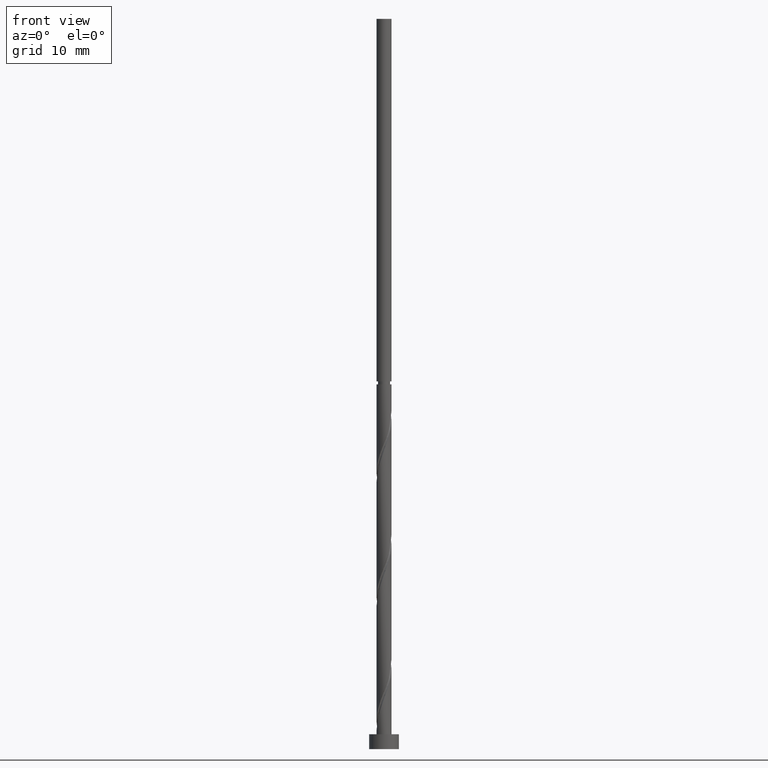
[diagram: clean part render]
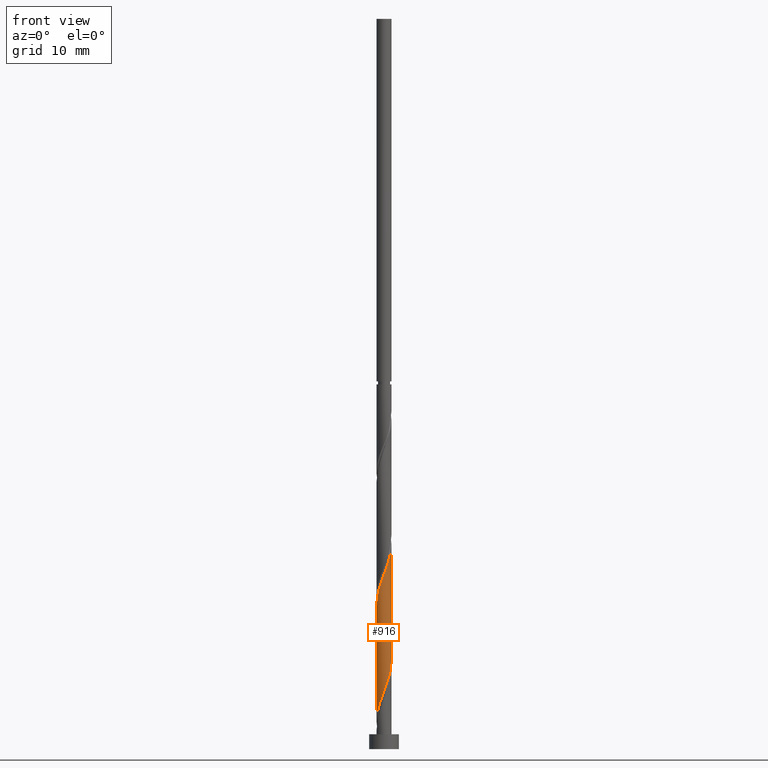
[diagram: same view with one face highlighted and labeled with its STEP entity id]
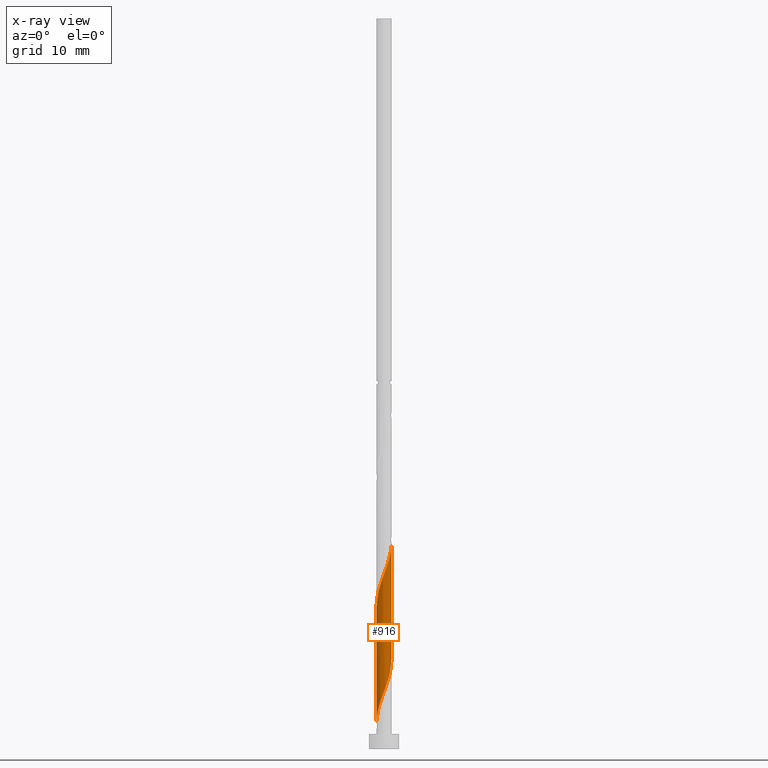
[diagram: x-ray of the same camera — body ghosted, the highlighted face saturated]
A machine part, front view. The second image highlights one B-rep face of the part: STEP entity #916.
The next image is the same camera in x-ray: the body ghosted, the highlighted face saturated — about 0% of this face is hidden behind the body in this view.
In plain terms, the highlighted cylindrical surface (edge-blend (fillet) strip) has radius 1 mm, axis along (-0, -0, -1).
Its self-contained STEP definition (entity closure, byte-faithful):
#8 = CARTESIAN_POINT ( 'NONE',  ( 1.000000000000001554, 8.963379928136170054E-17, 11.97549921100827142 ) ) ;
#84 = CARTESIAN_POINT ( 'NONE',  ( -0.9305560469009572788, -0.3661494825560536737, 20.24094061898249564 ) ) ;
#130 = CARTESIAN_POINT ( 'NONE',  ( -0.1989974874213162048, -0.9800000000000025357, 7.277977656019528396 ) ) ;
#219 = CARTESIAN_POINT ( 'NONE',  ( -1.000000000000001554, 5.639459871452275137E-16, 19.24712276769746211 ) ) ;
#231 =( BOUNDED_CURVE ( )  B_SPLINE_CURVE ( 2, ( #520, #393, #384, #952, #84, #1809, #403, #655, #1626, #363, #1375, #645, #1071, #1244, #1504, #676, #1637, #961, #1062, #1083, #1800 ),
 .UNSPECIFIED., .F., .T. ) 
 B_SPLINE_CURVE_WITH_KNOTS ( ( 3, 2, 2, 2, 2, 2, 2, 2, 2, 2, 3 ),
 ( 0.3045248053855295622, 0.3055555555555555802, 0.3194444444444444198, 0.3333333333333333703, 0.3472222222222222099, 0.3611111111111111605, 0.3750000000000000000, 0.3888888888888888395, 0.4027777777777777901, 0.4166666666666666297, 0.4295248053855293402 ),
 .UNSPECIFIED. ) 
 CURVE ( )  GEOMETRIC_REPRESENTATION_ITEM ( )  RATIONAL_B_SPLINE_CURVE ( ( 0.9071930855141420169, 0.9080659294509892954, 0.9090909090909289336, 0.8952797754656631746, 0.9090909090909289336, 0.8952797754656631746, 0.9090909090909289336, 0.8952797754656631746, 0.9090909090909289336, 0.8952797754656631746, 0.9090909090909289336, 0.8952797754656631746, 0.9090909090909289336, 0.8952797754656631746, 0.9090909090909289336, 0.8952797754656631746, 0.9090909090909289336, 0.8952797754656631746, 0.9090909090909289336, 0.8963047551056029238, 0.9071930855141416838 ) ) 
 REPRESENTATION_ITEM ( '' )  );
#243 = CARTESIAN_POINT ( 'NONE',  ( -1.000000000000001110, 5.614885271482465354E-13, 3.642165877673452457 ) ) ;
#253 = ORIENTED_EDGE ( 'NONE', *, *, #1185, .F. ) ;
#272 = CARTESIAN_POINT ( 'NONE',  ( -0.02619704632702029440, -1.015088626125574711, 7.740940618982492971 ) ) ;
#279 = CARTESIAN_POINT ( 'NONE',  ( -1.000000000000092815, -0.1630543718201875880, 4.072085390039808850 ) ) ;
#290 = CARTESIAN_POINT ( 'NONE',  ( 0.3225635862758375882, -0.9628312089533849205, 8.666866544908419456 ) ) ;
#338 = ORIENTED_EDGE ( 'NONE', *, *, #407, .F. ) ;
#363 = CARTESIAN_POINT ( 'NONE',  ( -0.3225635862758378658, -0.9628312089533850315, 22.55575543379731585 ) ) ;
#384 = CARTESIAN_POINT ( 'NONE',  ( -0.9996671490029762630, -0.02579905432886912472, 19.31501469305656471 ) ) ;
#393 = CARTESIAN_POINT ( 'NONE',  ( -1.000000000000001554, -0.01290167433201871820, 19.28114014162981604 ) ) ;
#403 = CARTESIAN_POINT ( 'NONE',  ( -0.7492061519980943718, -0.6623368793961351697, 21.16686654490841946 ) ) ;
#404 = EDGE_LOOP ( 'NONE', ( #253, #1828, #512, #338 ) ) ;
#405 = CARTESIAN_POINT ( 'NONE',  ( 0.9305560469009571678, -0.3661494825560535626, 10.98168135972323611 ) ) ;
#407 = EDGE_CURVE ( 'NONE', #1717, #1709, #1050, .T. ) ;
#409 = VECTOR ( 'NONE', #1110, 1000.000000000000000 ) ;
#414 = CARTESIAN_POINT ( 'NONE',  ( 0.4774909380590723895, -0.8786366735297754804, 9.129829507871381367 ) ) ;
#431 = CYLINDRICAL_SURFACE ( 'NONE', #630, 1.000000000000000000 ) ;
#499 = CARTESIAN_POINT ( 'NONE',  ( 1.000000000000000000, 1.224646799147353207E-16, 98.00000000000000000 ) ) ;
#512 = ORIENTED_EDGE ( 'NONE', *, *, #1274, .T. ) ;
#520 = CARTESIAN_POINT ( 'NONE',  ( -1.000000000000001554, 5.639459871452275137E-16, 19.24712276769746211 ) ) ;
#541 = CARTESIAN_POINT ( 'NONE',  ( 0.1481832699744088933, -0.9889599175394793162, 8.203903581945453993 ) ) ;
#566 = CARTESIAN_POINT ( 'NONE',  ( -0.3717979285156127189, -0.9449113738744314706, 6.815014693056572703 ) ) ;
#572 = CARTESIAN_POINT ( 'NONE',  ( -0.6725544933721951946, -0.7607638645273816502, 5.889088767130644442 ) ) ;
#630 = AXIS2_PLACEMENT_3D ( 'NONE', #1015, #712, #1566 ) ;
#645 = CARTESIAN_POINT ( 'NONE',  ( 0.02619704632701955541, -1.015088626125574711, 23.48168135972324677 ) ) ;
#655 = CARTESIAN_POINT ( 'NONE',  ( -0.6324182898423071908, -0.7944421381061670395, 21.62982950787139202 ) ) ;
#676 = CARTESIAN_POINT ( 'NONE',  ( 0.6725544933721948615, -0.7607638645273817612, 25.33353321157509086 ) ) ;
#693 = CARTESIAN_POINT ( 'NONE',  ( -1.000000000000001110, 5.614885271482465354E-13, 3.642165877673452457 ) ) ;
#702 = CARTESIAN_POINT ( 'NONE',  ( -0.7823727769265482745, -0.6228104349834253650, 5.426125804167683420 ) ) ;
#709 = CARTESIAN_POINT ( 'NONE',  ( 0.9996671490029762630, -0.02579905432886956188, 11.90760728564916349 ) ) ;
#712 = DIRECTION ( 'NONE',  ( -0.000000000000000000, -0.000000000000000000, -1.000000000000000000 ) ) ;
#828 = CARTESIAN_POINT ( 'NONE',  ( -1.000000000000000000, 0.000000000000000000, 98.00000000000000000 ) ) ;
#830 = CARTESIAN_POINT ( 'NONE',  ( -0.9482036394194104378, -0.3176631206038670885, 4.500199878241752494 ) ) ;
#916 = ADVANCED_FACE ( 'NONE', ( #1559 ), #431, .T. ) ;
#952 = CARTESIAN_POINT ( 'NONE',  ( -0.9951180796480333379, -0.2020673444260032148, 19.77797765601954438 ) ) ;
#961 = CARTESIAN_POINT ( 'NONE',  ( 0.8921910604809015766, -0.4848570054394704676, 26.25945913750101823 ) ) ;
#963 = CARTESIAN_POINT ( 'NONE',  ( -0.8921910604809015766, -0.4848570054394701900, 4.963162841204717957 ) ) ;
#980 = CARTESIAN_POINT ( 'NONE',  ( 0.8659940141538814418, -0.5302316206861048542, 10.51871839676027776 ) ) ;
#1015 = CARTESIAN_POINT ( 'NONE',  ( 0.000000000000000000, 0.000000000000000000, 98.00000000000000000 ) ) ;
#1044 = VECTOR ( 'NONE', #1779, 1000.000000000000000 ) ;
#1050 =( BOUNDED_CURVE ( )  B_SPLINE_CURVE ( 2, ( #8, #1811, #709, #1820, #405, #980, #1279, #1543, #414, #290, #541, #272, #130, #566, #1549, #572, #702, #963, #830, #279, #693 ),
 .UNSPECIFIED., .F., .T. ) 
 B_SPLINE_CURVE_WITH_KNOTS ( ( 3, 2, 2, 2, 2, 2, 2, 2, 2, 2, 3 ),
 ( 0.8045248053855293957, 0.8055555555555555802, 0.8194444444444444198, 0.8333333333333333703, 0.8472222222222222099, 0.8611111111111111605, 0.8750000000000000000, 0.8888888888888888395, 0.9027777777777777901, 0.9166666666666666297, 0.9295248053855518222 ),
 .UNSPECIFIED. ) 
 CURVE ( )  GEOMETRIC_REPRESENTATION_ITEM ( )  RATIONAL_B_SPLINE_CURVE ( ( 0.9071930855141311367, 0.9080659294509785262, 0.9090909090909183865, 0.8952797754656526275, 0.9090909090909183865, 0.8952797754656526275, 0.9090909090909183865, 0.8952797754656526275, 0.9090909090909183865, 0.8952797754656526275, 0.9090909090909183865, 0.8952797754656526275, 0.9090909090909183865, 0.8952797754656526275, 0.9090909090909183865, 0.8952797754656526275, 0.9090909090909183865, 0.8952797754656526275, 0.9090909090909183865, 0.8963047551055701723, 0.9071930855141691064 ) ) 
 REPRESENTATION_ITEM ( '' )  );
#1062 = CARTESIAN_POINT ( 'NONE',  ( 0.9482036394194104378, -0.3176631206038679767, 26.72242210046397659 ) ) ;
#1071 = CARTESIAN_POINT ( 'NONE',  ( 0.1989974874213159828, -0.9800000000000029798, 23.94464432268619802 ) ) ;
#1079 = EDGE_CURVE ( 'NONE', #1677, #1401, #231, .T. ) ;
#1083 = CARTESIAN_POINT ( 'NONE',  ( 1.000000000000001332, -0.1630543718204625347, 27.15053658866516884 ) ) ;
#1110 = DIRECTION ( 'NONE',  ( -0.000000000000000000, -0.000000000000000000, -1.000000000000000000 ) ) ;
#1148 = CARTESIAN_POINT ( 'NONE',  ( 1.000000000000001554, -5.807523245104826161E-16, 27.58045610103079781 ) ) ;
#1185 = EDGE_CURVE ( 'NONE', #1401, #1717, #1769, .T. ) ;
#1244 = CARTESIAN_POINT ( 'NONE',  ( 0.3717979285156121083, -0.9449113738744321367, 24.40760728564917059 ) ) ;
#1262 = LINE ( 'NONE', #828, #409 ) ;
#1274 = EDGE_CURVE ( 'NONE', #1677, #1709, #1262, .T. ) ;
#1279 = CARTESIAN_POINT ( 'NONE',  ( 0.7492061519980940387, -0.6623368793961357248, 10.05575543379731229 ) ) ;
#1375 = CARTESIAN_POINT ( 'NONE',  ( -0.1481832699744091986, -0.9889599175394793162, 23.01871839676027420 ) ) ;
#1401 = VERTEX_POINT ( 'NONE', #1148 ) ;
#1491 = CARTESIAN_POINT ( 'NONE',  ( 1.000000000000001554, 8.963379928136170054E-17, 11.97549921100827142 ) ) ;
#1504 = CARTESIAN_POINT ( 'NONE',  ( 0.5221762109439035404, -0.8528376192009065049, 24.87057024861212895 ) ) ;
#1543 = CARTESIAN_POINT ( 'NONE',  ( 0.6324182898423068577, -0.7944421381061669285, 9.592792470834346830 ) ) ;
#1549 = CARTESIAN_POINT ( 'NONE',  ( -0.5221762109439037625, -0.8528376192009062828, 6.352051730093607240 ) ) ;
#1559 = FACE_OUTER_BOUND ( 'NONE', #404, .T. ) ;
#1566 = DIRECTION ( 'NONE',  ( -1.000000000000000000, 0.000000000000000000, 0.000000000000000000 ) ) ;
#1626 = CARTESIAN_POINT ( 'NONE',  ( -0.4774909380590728336, -0.8786366735297755914, 22.09279247083435394 ) ) ;
#1637 = CARTESIAN_POINT ( 'NONE',  ( 0.7823727769265483856, -0.6228104349834256981, 25.79649617453805632 ) ) ;
#1677 = VERTEX_POINT ( 'NONE', #219 ) ;
#1709 = VERTEX_POINT ( 'NONE', #243 ) ;
#1717 = VERTEX_POINT ( 'NONE', #1491 ) ;
#1769 = LINE ( 'NONE', #499, #1044 ) ;
#1779 = DIRECTION ( 'NONE',  ( -0.000000000000000000, -0.000000000000000000, -1.000000000000000000 ) ) ;
#1800 = CARTESIAN_POINT ( 'NONE',  ( 1.000000000000001554, -5.807523245104826161E-16, 27.58045610103079781 ) ) ;
#1809 = CARTESIAN_POINT ( 'NONE',  ( -0.8659940141538819969, -0.5302316206861042991, 20.70390358194546465 ) ) ;
#1811 = CARTESIAN_POINT ( 'NONE',  ( 1.000000000000001554, -0.01290167433201708930, 11.94148183707592104 ) ) ;
#1820 = CARTESIAN_POINT ( 'NONE',  ( 0.9951180796480333379, -0.2020673444260034091, 11.44464432268620158 ) ) ;
#1828 = ORIENTED_EDGE ( 'NONE', *, *, #1079, .F. ) ;